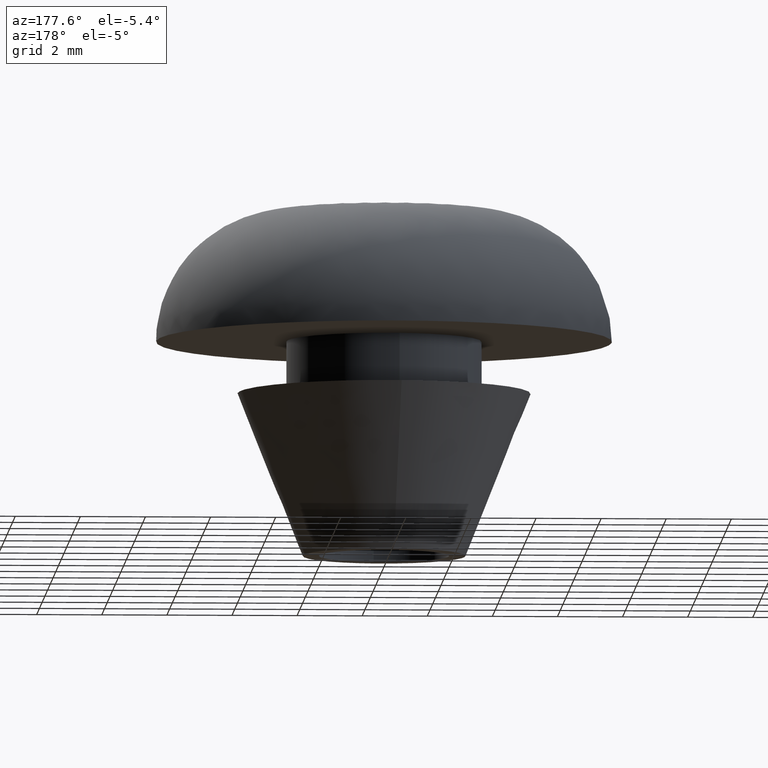
[diagram: clean part render]
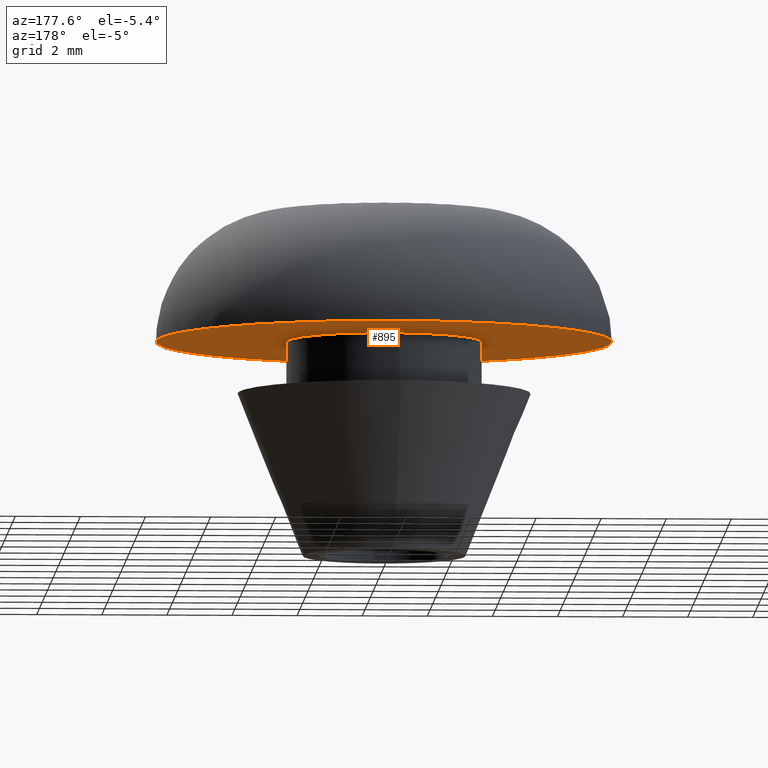
[diagram: same view with one face highlighted and labeled with its STEP entity id]
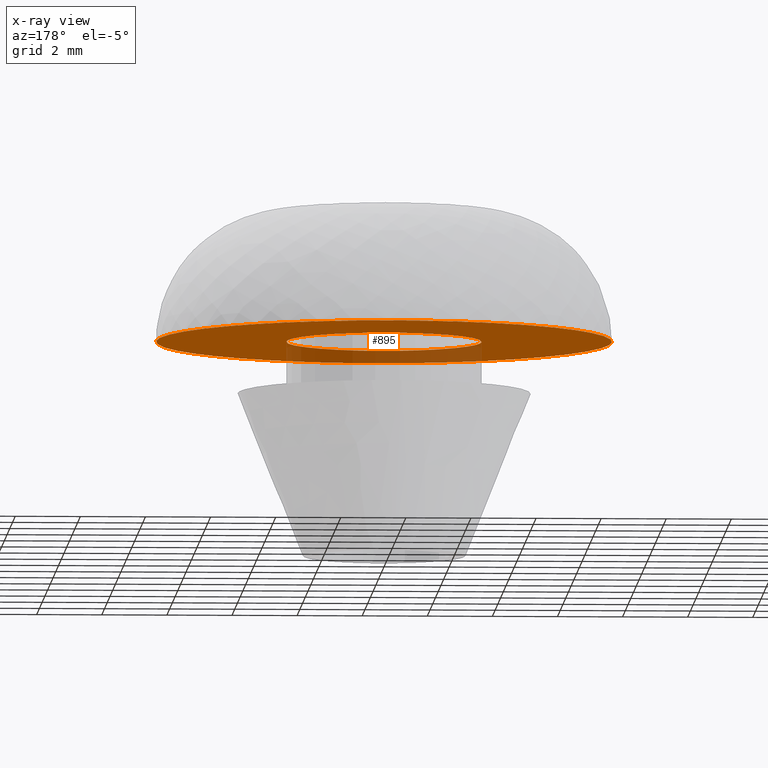
[diagram: x-ray of the same camera — body ghosted, the highlighted face saturated]
A machine part, auxiliary view. The second image highlights one B-rep face of the part: STEP entity #895.
The next image is the same camera in x-ray: the body ghosted, the highlighted face saturated — about 21% of this face is hidden behind the body in this view.
In plain terms, the highlighted face is a freeform B-spline surface patch.
Its self-contained STEP definition (entity closure, byte-faithful):
#256=CARTESIAN_POINT('',(-0.354102375368443,2.979028618150271,6.599999999999998));
#257=VERTEX_POINT('',#256);
#258=CARTESIAN_POINT('',(3.0,0.0,6.600000000000000));
#259=VERTEX_POINT('',#258);
#260=CARTESIAN_POINT('',(-0.354102375368443,2.979028618150271,6.599999999999998));
#261=CARTESIAN_POINT('',(-0.177672026879968,3.000000000000001,6.599999999999999));
#262=CARTESIAN_POINT('',(0.0,3.0,6.600000000000000));
#263=CARTESIAN_POINT('',(3.0,3.0,6.599999999999999));
#264=CARTESIAN_POINT('',(3.0,0.0,6.600000000000000));
#272=(BOUNDED_CURVE()B_SPLINE_CURVE(2,(#260,#261,#262,#263,#264),.UNSPECIFIED.,.F.,.U.)B_SPLINE_CURVE_WITH_KNOTS((3,2,3),(0.229562510799462,0.250000000000000,0.500000000000000),.UNSPECIFIED.)CURVE()GEOMETRIC_REPRESENTATION_ITEM()RATIONAL_B_SPLINE_CURVE((0.956026827265707,0.976055992014357,1.0,0.707106781186548,1.0))REPRESENTATION_ITEM(''));
#273=EDGE_CURVE('',#257,#259,#272,.T.);
#275=CARTESIAN_POINT('',(0.183141187636564,-2.994404666268633,6.599999999999952));
#276=VERTEX_POINT('',#275);
#277=CARTESIAN_POINT('',(3.0,0.0,6.600000000000000));
#278=CARTESIAN_POINT('',(3.000000000000000,-2.822122384550928,6.599999999999999));
#279=CARTESIAN_POINT('',(0.183141187636564,-2.994404666268632,6.599999999999952));
#287=(BOUNDED_CURVE()B_SPLINE_CURVE(2,(#277,#278,#279),.UNSPECIFIED.,.F.,.U.)B_SPLINE_CURVE_WITH_KNOTS((3,3),(0.500000000000000,0.739333217568020),.UNSPECIFIED.)CURVE()GEOMETRIC_REPRESENTATION_ITEM()RATIONAL_B_SPLINE_CURVE((1.0,0.719603694150089,0.976072588886144))REPRESENTATION_ITEM(''));
#288=EDGE_CURVE('',#259,#276,#287,.T.);
#355=CARTESIAN_POINT('',(-3.0,0.0,6.600000000000000));
#356=VERTEX_POINT('',#355);
#357=CARTESIAN_POINT('',(-3.0,0.0,6.600000000000000));
#358=CARTESIAN_POINT('',(-3.000000000000000,2.664524169812923,6.600000000000000));
#359=CARTESIAN_POINT('',(-0.354102375368443,2.979028618150271,6.599999999999998));
#367=(BOUNDED_CURVE()B_SPLINE_CURVE(2,(#357,#358,#359),.UNSPECIFIED.,.F.,.U.)B_SPLINE_CURVE_WITH_KNOTS((3,3),(0.0,0.229562510799462),.UNSPECIFIED.)CURVE()GEOMETRIC_REPRESENTATION_ITEM()RATIONAL_B_SPLINE_CURVE((1.0,0.731050789172191,0.956026827265707))REPRESENTATION_ITEM(''));
#368=EDGE_CURVE('',#356,#257,#367,.T.);
#402=CARTESIAN_POINT('',(0.183141187636564,-2.994404666268632,6.599999999999952));
#403=CARTESIAN_POINT('',(0.091656068200012,-3.000000000000000,6.600000000000000));
#404=CARTESIAN_POINT('',(0.0,-3.0,6.600000000000000));
#405=CARTESIAN_POINT('',(-3.0,-3.0,6.599999999999999));
#406=CARTESIAN_POINT('',(-3.0,0.0,6.600000000000000));
#414=(BOUNDED_CURVE()B_SPLINE_CURVE(2,(#402,#403,#404,#405,#406),.UNSPECIFIED.,.F.,.U.)B_SPLINE_CURVE_WITH_KNOTS((3,2,3),(0.739333217568020,0.750000000000000,1.0),.UNSPECIFIED.)CURVE()GEOMETRIC_REPRESENTATION_ITEM()RATIONAL_B_SPLINE_CURVE((0.976072588886144,0.987503087036458,1.0,0.707106781186548,1.0))REPRESENTATION_ITEM(''));
#415=EDGE_CURVE('',#276,#356,#414,.T.);
#664=CARTESIAN_POINT('',(-7.0,0.0,6.599999999999989));
#665=VERTEX_POINT('',#664);
#681=CARTESIAN_POINT('',(0.808249330410697,-6.953181503447942,6.599999997219419));
#682=VERTEX_POINT('',#681);
#683=CARTESIAN_POINT('',(0.808249330410697,-6.953181503447942,6.599999997219419));
#684=CARTESIAN_POINT('',(0.405480526026914,-7.000000000000001,6.600000000000000));
#685=CARTESIAN_POINT('',(0.0,-7.0,6.600000000000000));
#686=CARTESIAN_POINT('',(-6.999999999999999,-6.999999999999999,6.600000000000001));
#687=CARTESIAN_POINT('',(-7.0,0.0,6.600000000000000));
#695=(BOUNDED_CURVE()B_SPLINE_CURVE(2,(#683,#684,#685,#686,#687),.UNSPECIFIED.,.F.,.U.)B_SPLINE_CURVE_WITH_KNOTS((3,2,3),(0.730000013374359,0.750000000000000,1.0),.UNSPECIFIED.)CURVE()GEOMETRIC_REPRESENTATION_ITEM()RATIONAL_B_SPLINE_CURVE((0.956886144514642,0.976568558163960,1.0,0.707106781186547,1.0))REPRESENTATION_ITEM(''));
#696=EDGE_CURVE('',#682,#665,#695,.T.);
#789=CARTESIAN_POINT('',(7.0,0.0,6.600000000000000));
#790=VERTEX_POINT('',#789);
#791=CARTESIAN_POINT('',(7.0,0.0,6.600000000000000));
#792=CARTESIAN_POINT('',(6.999999999999999,-6.233442401958143,6.599999999999999));
#793=CARTESIAN_POINT('',(0.808249330410697,-6.953181503447942,6.599999997219419));
#801=(BOUNDED_CURVE()B_SPLINE_CURVE(2,(#791,#792,#793),.UNSPECIFIED.,.F.,.U.)B_SPLINE_CURVE_WITH_KNOTS((3,3),(0.500000000000000,0.730000013374358),.UNSPECIFIED.)CURVE()GEOMETRIC_REPRESENTATION_ITEM()RATIONAL_B_SPLINE_CURVE((1.0,0.730538223022588,0.956886144514641))REPRESENTATION_ITEM(''));
#802=EDGE_CURVE('',#790,#682,#801,.T.);
#804=CARTESIAN_POINT('',(-7.0,0.0,6.600000000000000));
#805=CARTESIAN_POINT('',(-6.999999999999999,6.999999999999999,6.600000000000001));
#806=CARTESIAN_POINT('',(0.0,7.0,6.600000000000000));
#807=CARTESIAN_POINT('',(6.999999999999999,6.999999999999999,6.600000000000001));
#808=CARTESIAN_POINT('',(7.0,0.0,6.600000000000000));
#816=(BOUNDED_CURVE()B_SPLINE_CURVE(2,(#804,#805,#806,#807,#808),.UNSPECIFIED.,.F.,.U.)B_SPLINE_CURVE_WITH_KNOTS((3,2,3),(0.0,0.250000000000000,0.500000000000000),.UNSPECIFIED.)CURVE()GEOMETRIC_REPRESENTATION_ITEM()RATIONAL_B_SPLINE_CURVE((1.0,0.707106781186547,1.0,0.707106781186547,1.0))REPRESENTATION_ITEM(''));
#817=EDGE_CURVE('',#665,#790,#816,.T.);
#879=CARTESIAN_POINT('',(7.699299972865284,-7.699260438105377,6.600000000000000));
#880=CARTESIAN_POINT('',(-7.699300348374545,-7.699260438105377,6.600000000000000));
#881=CARTESIAN_POINT('',(7.699299972865284,7.699298467473819,6.600000000000000));
#882=CARTESIAN_POINT('',(-7.699300348374545,7.699298467473819,6.600000000000000));
#883=B_SPLINE_SURFACE_WITH_KNOTS('',1,1,((#879,#881),(#880,#882)),.UNSPECIFIED.,.F.,.F.,.U.,(2,2),(2,2),(0.0,15.398600321239829),(0.0,15.398558905579200),.UNSPECIFIED.);
#884=ORIENTED_EDGE('',*,*,#817,.T.);
#885=ORIENTED_EDGE('',*,*,#802,.T.);
#886=ORIENTED_EDGE('',*,*,#696,.T.);
#887=EDGE_LOOP('',(#884,#885,#886));
#888=FACE_OUTER_BOUND('',#887,.T.);
#889=ORIENTED_EDGE('',*,*,#288,.F.);
#890=ORIENTED_EDGE('',*,*,#273,.F.);
#891=ORIENTED_EDGE('',*,*,#368,.F.);
#892=ORIENTED_EDGE('',*,*,#415,.F.);
#893=EDGE_LOOP('',(#889,#890,#891,#892));
#894=FACE_BOUND('',#893,.T.);
#895=ADVANCED_FACE('',(#888,#894),#883,.T.);